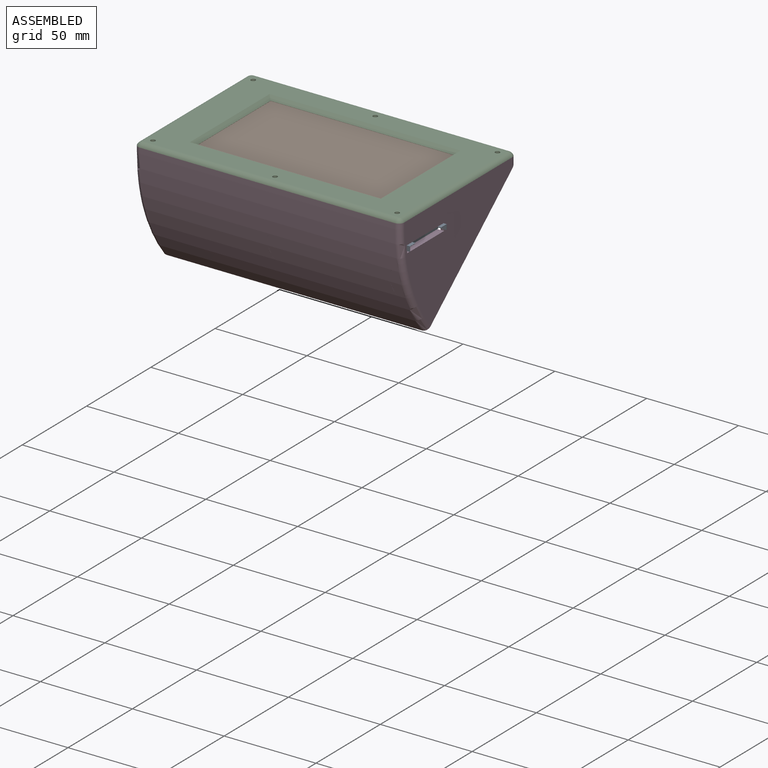
[diagram: assembled view]
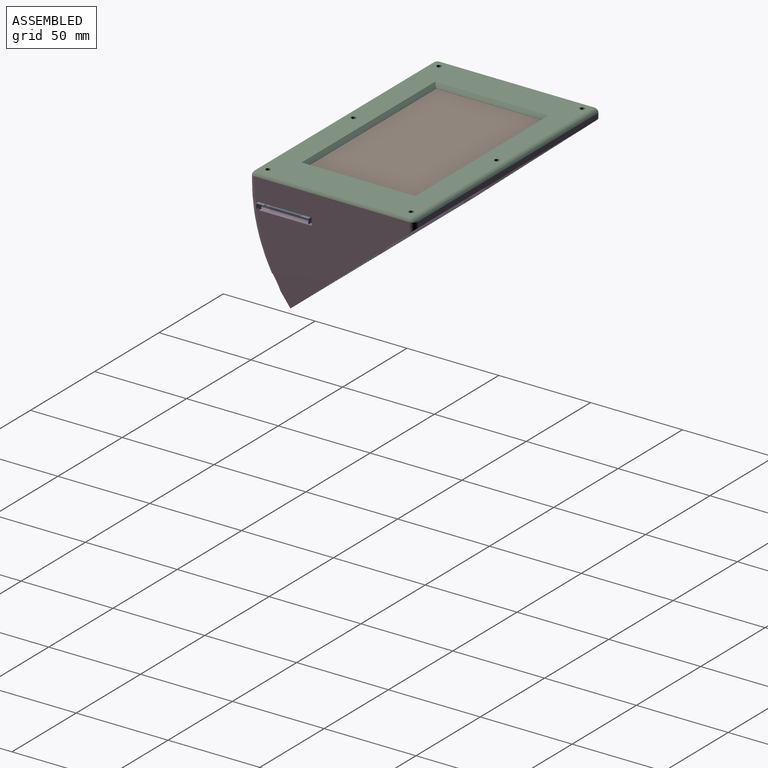
[diagram: assembled view, second angle]
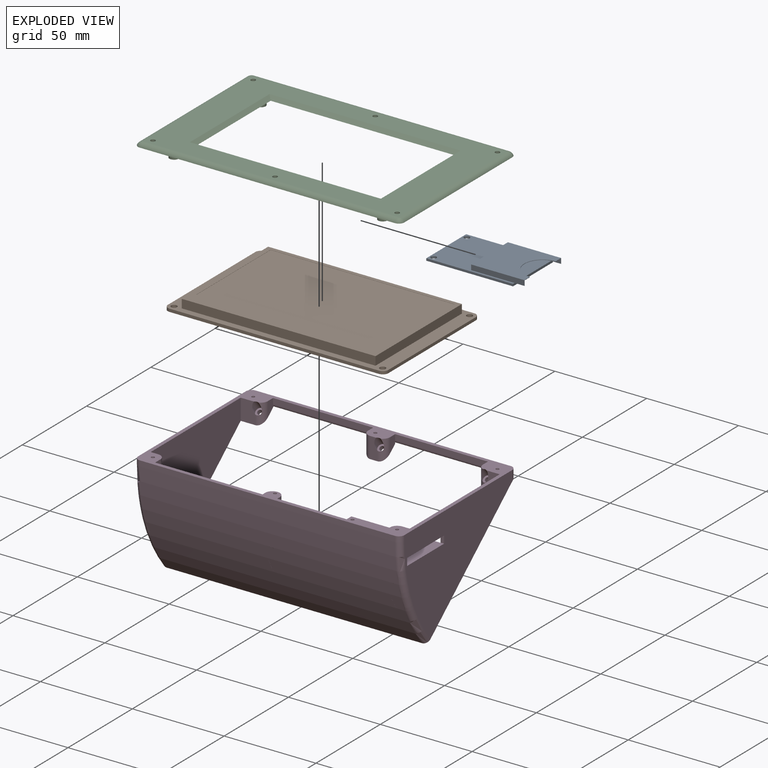
[diagram: exploded view]
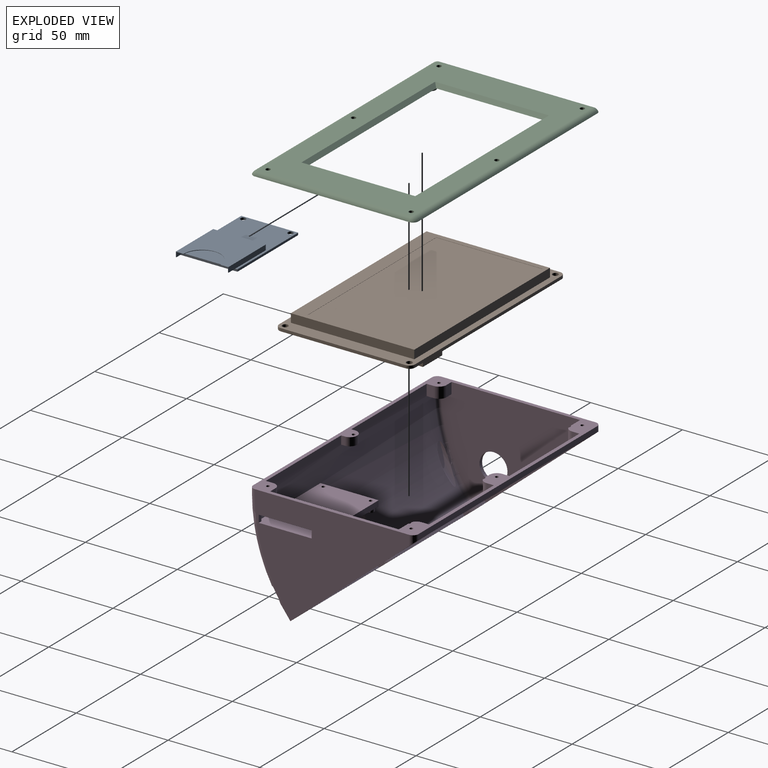
[diagram: exploded view, second angle]
ASSEMBLY  parts=4 mates=3
PART A: 22 faces, bbox 31x52.5x4 mm
  f0: plane 4.25x2.8mm, normal (0,-1,0), area 1.4mm2, adj f1,f11,f15,f16,f19,f21
  f1: plane 28.2x25mm, normal (0,0,-1), area 546.3mm2, adj f0,f12,f18,f19,f20,f21
  f2: plane 5.35x0.2mm, normal (0,0,-1), area 1.1mm2, adj f4,f12,f13,f18
  f3: plane 47.2x31mm, normal (0,0,1), area 772.6mm2, adj f4,f5,f6,f7,f8,f9,f11,f13
  f4: plane 31x1.2mm, normal (0,-1,0), area 37.2mm2, adj f2,f3,f5,f9,f10,f16,f17
  f5: plane 47.2x1.2mm, normal (1,0,0), area 56.6mm2, adj f3,f4,f6,f10
  f6: plane 31x1.2mm, normal (0,1,0), area 37.2mm2, adj f3,f5,f9,f10
  f7: cylinder r=1.5mm len=3mm, axis (0,0,-1), area 11.3mm2, adj f3,f10
  f8: cylinder r=1.5mm len=3mm, axis (0,0,-1), area 11.3mm2, adj f3,f10
  f9: plane 47.2x1.2mm, normal (-1,0,0), area 56.6mm2, adj f3,f4,f6,f10
  f10: plane 47.2x31mm, normal (0,0,-1), area 1449.1mm2, adj f4,f5,f6,f7,f8,f9
  f11: plane 29x2.8mm, normal (-1,0,0), area 81.2mm2, adj f0,f3,f14,f15,f16
  f12: plane 4.25x2.8mm, normal (0,-1,0), area 1.4mm2, adj f1,f2,f13,f15,f18,f21
  f13: plane 29x2.8mm, normal (1,0,0), area 81.2mm2, adj f2,f3,f12,f14,f15
  f14: plane 28.6x2.8mm, normal (0,1,0), area 80.1mm2, adj f3,f11,f13,f15
  f15: plane 29x28.6mm, normal (0,0,1), area 670.7mm2, adj f0,f11,f12,f13,f14,f21
  f16: plane 5.35x0.2mm, normal (0,0,-1), area 1.1mm2, adj f0,f4,f11,f19
  f17: plane 28.2x19.65mm, normal (0,0,1), area 554.2mm2, adj f4,f18,f19,f20
  f18: plane 25x2.6mm, normal (-1,0,0), area 65mm2, adj f1,f2,f12,f17,f20
  f19: plane 25x2.6mm, normal (1,0,0), area 65mm2, adj f0,f1,f16,f17,f20
  f20: plane 28.2x2.6mm, normal (0,-1,0), area 73.3mm2, adj f1,f17,f18,f19
  f21: cylinder r=10.05mm len=20.1mm, axis (0,0,1), area 6.3mm2, adj f0,f1,f12,f15
PART B: 32 faces, bbox 120x74x12.3 mm
  f0: plane 68x1.6mm, normal (1,0,0), area 108.8mm2, adj f8,f9,f28,f31
  f1: plane 114x3.6mm, normal (0,1,0), area 212.4mm2, adj f8,f9,f20,f21,f23,f28,f29
  f2: plane 68x7.6mm, normal (-1,0,0), area 198.8mm2, adj f8,f9,f24,f26,f27,f29,f30
  f3: cylinder r=1.6mm len=3.2mm, axis (0,0,-1), area 16.1mm2, adj f8,f9
  f4: cylinder r=1.6mm len=3.2mm, axis (0,0,-1), area 16.1mm2, adj f8,f9
  f5: cylinder r=1.6mm len=3.2mm, axis (0,0,-1), area 16.1mm2, adj f8,f9
  f6: cylinder r=1.6mm len=3.2mm, axis (0,0,-1), area 16.1mm2, adj f8,f9
  f7: plane 114x1.6mm, normal (0,-1,0), area 182.4mm2, adj f8,f9,f30,f31
  f8: plane 120x74mm, normal (0,0,1), area 1750.5mm2, adj f0,f1,f2,f3,f4,f5,f6,f7
  f9: plane 120x74mm, normal (0,0,-1), area 8495.1mm2, adj f0,f1,f2,f3,f4,f5,f6,f7
  f10: plane 67.2x4.7mm, normal (-1,0,0), area 315.8mm2, adj f8,f11,f13,f14
  f11: plane 105.5x4.7mm, normal (0,-1,0), area 495.9mm2, adj f8,f10,f12,f14
  f12: plane 67.2x4.7mm, normal (1,0,0), area 315.8mm2, adj f8,f11,f13,f14
  f13: plane 105.5x4.7mm, normal (0,1,0), area 495.9mm2, adj f8,f10,f12,f14
  f14: plane 105.5x67.2mm, normal (0,0,1), area 1289.6mm2, adj f10,f11,f12,f13,f15,f16,f17,f18
  f15: plane 58x0.1mm, normal (1,0,0), area 5.8mm2, adj f14,f16,f18,f19
  f16: plane 100x0.1mm, normal (0,1,0), area 10mm2, adj f14,f15,f17,f19
  f17: plane 58x0.1mm, normal (-1,0,0), area 5.8mm2, adj f14,f16,f18,f19
  f18: plane 100x0.1mm, normal (0,-1,0), area 10mm2, adj f14,f15,f17,f19
  f19: plane 100x58mm, normal (0,0,1), area 5800mm2, adj f15,f16,f17,f18
  f20: plane 15x2mm, normal (-1,0,0), area 30mm2, adj f1,f9,f22,f23
  f21: plane 15x2mm, normal (1,0,0), area 30mm2, adj f1,f9,f22,f23
  f22: plane 15x2mm, normal (0,-1,0), area 30mm2, adj f9,f20,f21,f23
  f23: plane 15x15mm, normal (0,0,-1), area 225mm2, adj f1,f20,f21,f22
  f24: plane 8x6mm, normal (0,1,0), area 48mm2, adj f2,f9,f25,f27
  f25: plane 15x6mm, normal (1,0,0), area 90mm2, adj f9,f24,f26,f27
  f26: plane 8x6mm, normal (0,-1,0), area 48mm2, adj f2,f9,f25,f27
  f27: plane 15x8mm, normal (0,0,-1), area 120mm2, adj f2,f24,f25,f26
  f28: cylinder r=3mm len=3mm, axis (0,0,-1), area 7.5mm2, adj f0,f1,f8,f9
  f29: cylinder r=3mm len=3mm, axis (0,0,1), area 7.5mm2, adj f1,f2,f8,f9
  f30: cylinder r=3mm len=3mm, axis (0,0,-1), area 7.5mm2, adj f2,f7,f8,f9
  f31: cylinder r=3mm len=3mm, axis (0,0,1), area 7.5mm2, adj f0,f7,f8,f9
PART C: 66 faces, bbox 145x90x6.7 mm
  f0: plane 145x90mm, normal (0,0,-1), area 6586.4mm2, adj f3,f7,f11,f15,f18,f19,f20,f21
  f1: plane 139.34x84.34mm, normal (0,0,1), area 5275.2mm2, adj f48,f49,f50,f51,f52,f53,f54,f55
  f2: cylinder r=1mm len=4.7mm, axis (0,0,1), area 29.5mm2, adj f4,f5
  f3: cylinder r=2.5mm len=5mm, axis (0,0,1), area 73.8mm2, adj f0,f4
  f4: plane 5x5mm, normal (0,0,-1), area 16.5mm2, adj f2,f3
  f5: plane 2x2mm, normal (0,0,-1), area 3.1mm2, adj f2
  f6: cylinder r=1mm len=4.7mm, axis (0,0,1), area 29.5mm2, adj f8,f9
  f7: cylinder r=2.5mm len=5mm, axis (0,0,1), area 73.8mm2, adj f0,f8
  f8: plane 5x5mm, normal (0,0,-1), area 16.5mm2, adj f6,f7
  f9: plane 2x2mm, normal (0,0,-1), area 3.1mm2, adj f6
  f10: cylinder r=1mm len=4.7mm, axis (0,0,1), area 29.5mm2, adj f12,f13
  f11: cylinder r=2.5mm len=5mm, axis (0,0,1), area 73.8mm2, adj f0,f12
  f12: plane 5x5mm, normal (0,0,-1), area 16.5mm2, adj f10,f11
  f13: plane 2x2mm, normal (0,0,-1), area 3.1mm2, adj f10
  f14: cylinder r=1mm len=4.7mm, axis (0,0,1), area 29.5mm2, adj f16,f17
  f15: cylinder r=2.5mm len=5mm, axis (0,0,1), area 73.8mm2, adj f0,f16
  f16: plane 5x5mm, normal (0,0,-1), area 16.5mm2, adj f14,f15
  f17: plane 2x2mm, normal (0,0,-1), area 3.1mm2, adj f14
  f18: plane 1.6x1mm, normal (1,0,0), area 1.6mm2, adj f0,f19,f21,f22
  f19: plane 52.3x1mm, normal (0,1,0), area 52.3mm2, adj f0,f18,f20,f22
  f20: plane 1.6x1mm, normal (-1,0,0), area 1.6mm2, adj f0,f19,f21,f22
  f21: plane 52.3x1mm, normal (0,-1,0), area 52.3mm2, adj f0,f18,f20,f22
  f22: plane 52.3x1.6mm, normal (0,0,-1), area 83.7mm2, adj f18,f19,f20,f21
  f23: plane 52.3x1mm, normal (0,1,0), area 52.3mm2, adj f0,f24,f26,f27
  f24: plane 1.6x1mm, normal (-1,0,0), area 1.6mm2, adj f0,f23,f25,f27
  f25: plane 52.3x1mm, normal (0,-1,0), area 52.3mm2, adj f0,f24,f26,f27
  f26: plane 1.6x1mm, normal (1,0,0), area 1.6mm2, adj f0,f23,f25,f27
  f27: plane 52.3x1.6mm, normal (0,0,-1), area 83.7mm2, adj f23,f24,f25,f26
  f28: plane 1.6x1mm, normal (1,0,0), area 1.6mm2, adj f0,f29,f31,f32
  f29: plane 52.3x1mm, normal (0,1,0), area 52.3mm2, adj f0,f28,f30,f32
  f30: plane 1.6x1mm, normal (-1,0,0), area 1.6mm2, adj f0,f29,f31,f32
  f31: plane 52.3x1mm, normal (0,-1,0), area 52.3mm2, adj f0,f28,f30,f32
  f32: plane 52.3x1.6mm, normal (0,0,-1), area 83.7mm2, adj f28,f29,f30,f31
  f33: plane 48.3x1mm, normal (0,1,0), area 48.3mm2, adj f0,f34,f36,f37
  f34: plane 1.6x1mm, normal (-1,0,0), area 1.6mm2, adj f0,f33,f35,f37
  f35: plane 48.3x1mm, normal (0,-1,0), area 48.3mm2, adj f0,f34,f36,f37
  f36: plane 1.6x1mm, normal (1,0,0), area 1.6mm2, adj f0,f33,f35,f37
  f37: plane 48.3x1.6mm, normal (0,0,-1), area 77.3mm2, adj f33,f34,f35,f36
  f38: plane 68.6x1mm, normal (-1,0,0), area 68.6mm2, adj f0,f39,f41,f42
  f39: plane 1.6x1mm, normal (0,-1,0), area 1.6mm2, adj f0,f38,f40,f42
  f40: plane 68.6x1mm, normal (1,0,0), area 68.6mm2, adj f0,f39,f41,f42
  f41: plane 1.6x1mm, normal (0,1,0), area 1.6mm2, adj f0,f38,f40,f42
  f42: plane 68.6x1.6mm, normal (0,0,-1), area 109.8mm2, adj f38,f39,f40,f41
  f43: plane 1.6x1mm, normal (0,-1,0), area 1.6mm2, adj f0,f44,f46,f47
  f44: plane 68.6x1mm, normal (1,0,0), area 68.6mm2, adj f0,f43,f45,f47
  f45: plane 1.6x1mm, normal (0,1,0), area 1.6mm2, adj f0,f44,f46,f47
  f46: plane 68.6x1mm, normal (-1,0,0), area 68.6mm2, adj f0,f43,f45,f47
  f47: plane 68.6x1.6mm, normal (0,0,-1), area 109.8mm2, adj f43,f44,f45,f46
  f48: plane 62x2mm, normal (-0.71,0,0.71), area 169.7mm2, adj f0,f1,f49,f50
  f49: plane 104x2mm, normal (0,-0.71,0.71), area 288.5mm2, adj f0,f1,f48,f51
  f50: plane 104x2mm, normal (0,0.71,0.71), area 288.5mm2, adj f0,f1,f48,f51
  f51: plane 62x2mm, normal (0.71,0,0.71), area 169.7mm2, adj f0,f1,f49,f50
  f52: cylinder r=1.25mm len=2.5mm, axis (0,0,-1), area 15.7mm2, adj f0,f1
  f53: cylinder r=1.25mm len=2.5mm, axis (0,0,-1), area 15.7mm2, adj f0,f1
  f54: cylinder r=1.25mm len=2.5mm, axis (0,0,-1), area 15.7mm2, adj f0,f1
  f55: cylinder r=1.25mm len=2.5mm, axis (0,0,-1), area 15.7mm2, adj f0,f1
  f56: cylinder r=1.25mm len=2.5mm, axis (0,0,-1), area 15.7mm2, adj f0,f1
  f57: cylinder r=1.25mm len=2.5mm, axis (0,0,-1), area 15.7mm2, adj f0,f1
  f58: cylinder r=3mm len=139mm, axis (-1,0,0), area 513.3mm2, adj f0,f1,f59,f60
  f59: torus R=0.17mm, axis (0,0,-1), area 10.4mm2, adj f0,f1,f58,f61
  f60: torus R=0.17mm, axis (0,0,-1), area 10.4mm2, adj f0,f1,f58,f62
  f61: cylinder r=3mm len=84mm, axis (0,-1,0), area 310.2mm2, adj f0,f1,f59,f63
  f62: cylinder r=3mm len=84mm, axis (0,-1,0), area 310.2mm2, adj f0,f1,f60,f64
  f63: torus R=0.17mm, axis (0,0,-1), area 10.4mm2, adj f0,f1,f61,f65
  f64: torus R=0.17mm, axis (0,0,-1), area 10.4mm2, adj f0,f1,f62,f65
  f65: cylinder r=3mm len=139mm, axis (-1,0,0), area 513.3mm2, adj f0,f1,f63,f64
PART D: 103 faces, bbox 146.1x98.5x67 mm
  f0: cylinder r=1.25mm len=3.52mm, axis (0,0.64,-0.77), area 19.6mm2, adj f1,f2
  f1: plane 12.32x8.32mm, normal (0,0.64,-0.77), area 108.1mm2, adj f0,f3,f4,f5,f6,f7,f8,f9
  f2: plane 4.5x3.45mm, normal (0,-0.64,0.77), area 11mm2, adj f0,f10
  f3: cylinder r=0.9mm len=8.79mm, axis (0,0,1), area 45.6mm2, adj f1,f11
  f4: plane 8.03x4mm, normal (1,0,0), area 25.4mm2, adj f1,f5,f9,f11,f12
  f5: cylinder r=4mm len=11.39mm, axis (0,0,-1), area 47.6mm2, adj f1,f4,f6,f10,f11
  f6: plane 12.32x4.93mm, normal (0,-1,0), area 37mm2, adj f1,f5,f7,f10,f11
  f7: cylinder r=4mm len=11.39mm, axis (0,0,1), area 63.9mm2, adj f1,f6,f8,f11
  f8: plane 8.03x4mm, normal (-1,0,0), area 25.4mm2, adj f1,f7,f9,f11,f13
  f9: plane 12x1.68mm, normal (0,1,0), area 20.1mm2, adj f1,f4,f8,f14
  f10: cylinder r=2.25mm len=7.66mm, axis (0,0.64,-0.77), area 51.4mm2, adj f2,f5,f6,f11
  f11: plane 145.56x90.56mm, normal (0,0,1), area 1334.8mm2, adj f3,f4,f5,f6,f7,f8,f10,f12
  f12: plane 50.5x3mm, normal (0,-1,0), area 151.5mm2, adj f4,f11,f14,f28
  f13: plane 54.5x3mm, normal (0,-1,0), area 163.5mm2, adj f8,f11,f14,f48
  f14: cylinder r=2mm len=117mm, axis (1,0,0), area 163.4mm2, adj f9,f12,f13,f28,f48,f49
  f15: cylinder r=0.9mm len=6mm, axis (0,0,1), area 33.9mm2, adj f11,f50
  f16: cylinder r=0.9mm len=8.79mm, axis (0,0,1), area 45.6mm2, adj f11,f49
  f17: cylinder r=0.9mm len=8.79mm, axis (0,0,1), area 45.6mm2, adj f11,f49
  f18: cylinder r=0.9mm len=4.5mm, axis (0,0,1), area 25.4mm2, adj f11,f51
  f19: cylinder r=0.9mm len=6mm, axis (0,0,1), area 33.9mm2, adj f11,f52
  f20: plane 139x3mm, normal (0,-1,0), area 417mm2, adj f11,f21,f27,f53
  f21: cylinder r=3mm len=3mm, axis (0,0,-1), area 14.1mm2, adj f11,f20,f22,f54
  f22: plane 84x58.92mm, normal (1,0,0), area 2775.1mm2, adj f11,f21,f23,f49,f54,f55,f56,f57
  f23: cylinder r=3mm len=5.52mm, axis (0,0,1), area 20.1mm2, adj f11,f22,f24,f49
  f24: plane 139x3mm, normal (0,1,0), area 417mm2, adj f11,f23,f25,f49
  f25: cylinder r=3mm len=5.52mm, axis (0,0,1), area 20.1mm2, adj f11,f24,f26,f49
  f26: plane 84x58.92mm, normal (-1,0,0), area 2708.8mm2, adj f11,f25,f27,f49,f59,f60
  f27: cylinder r=3mm len=3mm, axis (0,0,-1), area 14.1mm2, adj f11,f20,f26,f60
  f28: plane 8.03x4.47mm, normal (-1,0,0), area 25.7mm2, adj f11,f12,f14,f29,f49
  f29: cylinder r=4mm len=11.39mm, axis (0,0,-1), area 47.6mm2, adj f11,f28,f30,f31,f49
  f30: cylinder r=2.25mm len=7.66mm, axis (0,0.64,-0.77), area 51.4mm2, adj f11,f29,f31,f61
  f31: plane 12.32x8.93mm, normal (0,-1,0), area 82.5mm2, adj f11,f29,f30,f32,f49
  f32: plane 77.95x54.51mm, normal (-1,0,0), area 2495mm2, adj f11,f31,f33,f49,f50,f55,f56,f57
  f33: plane 6x4mm, normal (0,1,0), area 24mm2, adj f11,f32,f34,f50
  f34: cylinder r=4mm len=6mm, axis (0,0,-1), area 37.7mm2, adj f11,f33,f35,f50
  f35: plane 6x4mm, normal (-1,0,0), area 23.9mm2, adj f11,f34,f36,f50,f69
  f36: plane 58.5x3mm, normal (0,1,0), area 175.5mm2, adj f11,f35,f37,f69
  f37: plane 4.5x2mm, normal (1,0,0), area 9mm2, adj f11,f36,f38,f51,f69
  f38: cylinder r=4mm len=8mm, axis (0,0,-1), area 56.5mm2, adj f11,f37,f39,f51
  f39: plane 4.5x2mm, normal (-1,0,0), area 9mm2, adj f11,f38,f40,f51,f69
  f40: plane 58.5x3mm, normal (0,1,0), area 175.5mm2, adj f11,f39,f41,f69
  f41: plane 6x4mm, normal (1,0,0), area 23.9mm2, adj f11,f40,f42,f52,f69
  f42: cylinder r=4mm len=6mm, axis (0,0,-1), area 37.7mm2, adj f11,f41,f43,f52
  f43: plane 6x4mm, normal (0,1,0), area 24mm2, adj f11,f42,f44,f52
  f44: plane 75.95x55.16mm, normal (1,0,0), area 2528.7mm2, adj f11,f43,f45,f49,f52,f59,f71,f72
  f45: plane 12.32x8.93mm, normal (0,-1,0), area 82.5mm2, adj f11,f44,f46,f47,f49
  f46: cylinder r=2.25mm len=7.66mm, axis (0,0.64,-0.77), area 51.4mm2, adj f11,f45,f47,f76
  f47: cylinder r=4mm len=11.39mm, axis (0,0,-1), area 47.6mm2, adj f11,f45,f46,f48,f49
  f48: plane 8.03x4.47mm, normal (1,0,0), area 25.7mm2, adj f11,f13,f14,f47,f49
  f49: plane 146.06x70mm, normal (0,0.64,-0.77), area 1318.5mm2, adj f14,f16,f17,f22,f23,f24,f25,f26
  f50: plane 8x7.95mm, normal (0,0,-1), area 57.6mm2, adj f15,f32,f33,f34,f35,f69
  f51: plane 8x5.99mm, normal (0,0,-1), area 38.5mm2, adj f18,f37,f38,f39,f69
  f52: plane 8.03x7.98mm, normal (0,0,-1), area 56.8mm2, adj f19,f41,f42,f43,f44,f69,f71
  f53: cylinder r=90mm len=139mm, axis (1,0,0), area 8733.6mm2, adj f20,f49,f54,f60
  f54: torus R=87mm, axis (1,0,0), area 292.5mm2, adj f21,f22,f49,f53
  f55: plane 28.8x2mm, normal (0,0,1), area 57.6mm2, adj f22,f32,f56,f58
  f56: plane 4x2mm, normal (0,1,0), area 8mm2, adj f22,f32,f55,f57
  f57: plane 28.8x2mm, normal (0,0,-1), area 57.6mm2, adj f22,f32,f56,f58
  f58: plane 4x2mm, normal (0,-1,0), area 8mm2, adj f22,f32,f55,f57
  f59: cylinder r=7.6mm len=15.2mm, axis (-1,0,0), area 95.5mm2, adj f26,f44
  f60: torus R=87mm, axis (-1,0,0), area 292.5mm2, adj f26,f27,f49,f53
  f61: plane 4.5x3.45mm, normal (0,-0.64,0.77), area 11mm2, adj f30,f78
  f62: plane 8.06x6.12mm, normal (0,-0.64,0.77), area 53mm2, adj f32,f63,f69,f70,f80,f84,f85
  f63: torus R=85mm, axis (-1,0,0), area 48mm2, adj f32,f62,f64,f69
  f64: bspline ~20x11.12mm, area 65.1mm2, adj f32,f63,f65,f89
  f65: torus R=85mm, axis (-1,0,0), area 44.9mm2, adj f32,f64,f66,f69
  f66: plane 49.25x31.35mm, normal (0,0,-1), area 1496.9mm2, adj f32,f65,f67,f69,f90,f91,f92
  f67: plane 49x3mm, normal (0,1,0), area 147mm2, adj f32,f66,f68,f91
  f68: plane 49x31.62mm, normal (0,0,1), area 1544.3mm2, adj f32,f67,f69,f91,f93,f94
  f69: cylinder r=88mm len=139mm, axis (1,0,0), area 7855.1mm2, adj f32,f35,f36,f37,f39,f40,f41,f49
  f70: plane 4x3.06mm, normal (0,0.77,0.64), area 16mm2, adj f32,f49,f62,f85
  f71: torus R=86mm, axis (1,0,0), area 78.1mm2, adj f44,f52,f69,f72
  f72: bspline ~16.47x8.81mm, area 37.9mm2, adj f44,f71,f73,f96
  f73: torus R=86mm, axis (1,0,0), area 42.4mm2, adj f44,f69,f72,f74
  f74: plane 8.04x6.1mm, normal (0,-0.64,0.77), area 54.1mm2, adj f44,f69,f73,f75,f79,f86,f87
  f75: plane 4x3.06mm, normal (0,0.77,0.64), area 16mm2, adj f44,f49,f74,f86
  f76: plane 4.5x3.45mm, normal (0,-0.64,0.77), area 11mm2, adj f46,f77
  f77: cylinder r=1.25mm len=3.52mm, axis (0,0.64,-0.77), area 19.6mm2, adj f49,f76
  f78: cylinder r=1.25mm len=3.52mm, axis (0,0.64,-0.77), area 19.6mm2, adj f49,f61
  f79: cylinder r=1.25mm len=4.67mm, axis (0,0.64,-0.77), area 31.4mm2, adj f49,f74
  f80: cylinder r=1.25mm len=4.67mm, axis (0,0.64,-0.77), area 31.4mm2, adj f49,f62
  f81: cylinder r=1.25mm len=4.67mm, axis (0,0.64,-0.77), area 31.4mm2, adj f49,f95
  f82: cylinder r=4mm len=8mm, axis (0,0.64,-0.77), area 50.3mm2, adj f49,f83,f88,f95
  f83: plane 5.64x5.57mm, normal (1,0,0), area 15.9mm2, adj f49,f69,f82,f95
  f84: plane 5.64x5.57mm, normal (-1,0,0), area 15.9mm2, adj f49,f62,f69,f85
  f85: cylinder r=4mm len=5.64mm, axis (0,-0.64,0.77), area 25.1mm2, adj f49,f62,f70,f84
  f86: cylinder r=4mm len=5.64mm, axis (0,-0.64,0.77), area 25.1mm2, adj f49,f74,f75,f87
  f87: plane 5.64x5.57mm, normal (1,0,0), area 15.9mm2, adj f49,f69,f74,f86
  f88: plane 5.64x5.57mm, normal (-1,0,0), area 15.9mm2, adj f49,f69,f82,f95
  f89: cylinder r=3mm len=23.89mm, axis (0,0.64,-0.77), area 125.2mm2, adj f64,f69,f98
  f90: cylinder r=2mm len=4mm, axis (0,0,1), area 25.1mm2, adj f66,f99
  f91: plane 31.62x3mm, normal (-1,0,0), area 94.1mm2, adj f66,f67,f68,f69
  f92: cylinder r=2mm len=4mm, axis (0,0,1), area 25.1mm2, adj f66,f100
  f93: cylinder r=0.9mm len=5mm, axis (0,0,-1), area 28.3mm2, adj f68,f100
  f94: cylinder r=0.9mm len=5mm, axis (0,0,-1), area 28.3mm2, adj f68,f99
  f95: plane 8x6.06mm, normal (0,-0.64,0.77), area 51.5mm2, adj f69,f81,f82,f83,f88
  f96: cylinder r=3mm len=23.91mm, axis (0,0.64,-0.77), area 125.3mm2, adj f69,f72,f101
  f97: cylinder r=3mm len=23.78mm, axis (0,0.64,-0.77), area 124.5mm2, adj f69,f102
  f98: cylinder r=90mm len=16.42mm, axis (1,0,0), area 80.7mm2, adj f89
  f99: plane 4x4mm, normal (0,0,-1), area 10mm2, adj f90,f94
  f100: plane 4x4mm, normal (0,0,-1), area 10mm2, adj f92,f93
  f101: cylinder r=90mm len=16.26mm, axis (1,0,0), area 80.8mm2, adj f96
  f102: cylinder r=90mm len=16.26mm, axis (1,0,0), area 81.2mm2, adj f97
PLACE A rot(axis=(0,0,1),90deg) t=(45.3,-25.84,-9.7)mm
PLACE B t=(0,-2.61,0)mm
PLACE C at identity fixed
PLACE D t=(0,0,3.3)mm
MATE fastened A.f8 <-> D.f94  axis (0,0,-1) through (23.9,-12.94,-9.7)mm
MATE fastened B.f5 <-> C.f10  axis (0,0,1) through (56.8,31.19,1.6)mm
MATE fastened D.f16 <-> C.f55  axis (0,0,1) through (66.5,39,6.3)mm
